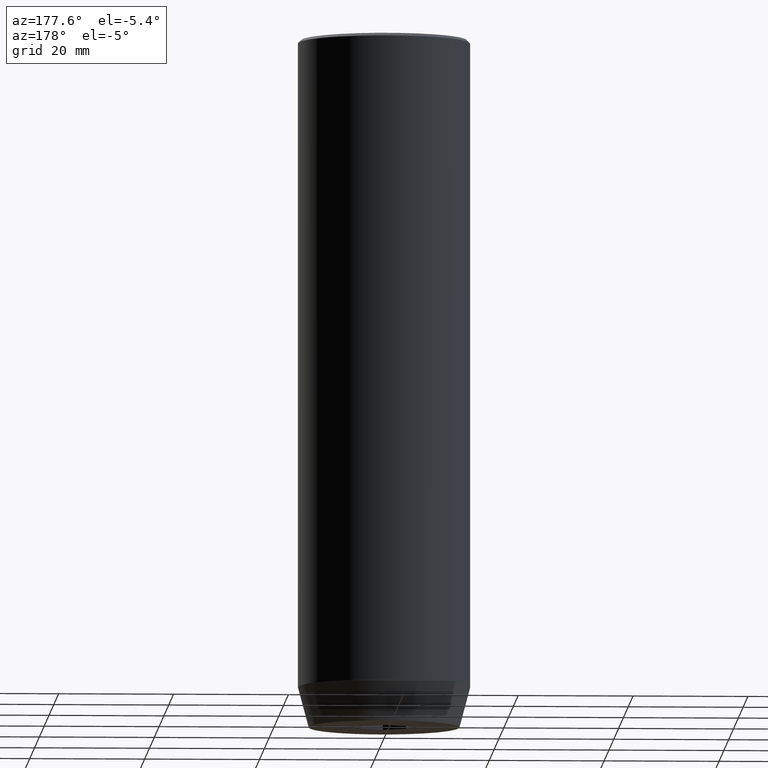
[diagram: clean part render]
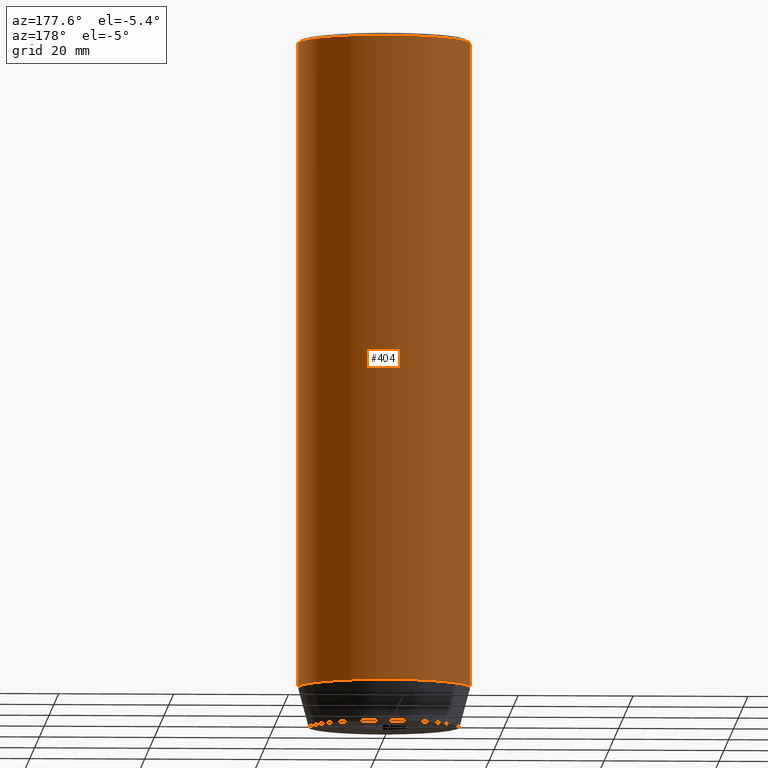
[diagram: same view with one face highlighted and labeled with its STEP entity id]
A machine part, auxiliary view. The second image highlights one B-rep face of the part: STEP entity #404.
In plain terms, the highlighted cylindrical surface (partial cylindrical patch) has radius 15 mm, axis along (-0, -0, 1).
Its self-contained STEP definition (entity closure, byte-faithful):
#16 = EDGE_CURVE ( 'NONE', #70, #596, #638, .T. ) ;
#39 = CARTESIAN_POINT ( 'NONE',  ( -15.00000000000000000, 1.836970198721029589E-15, -112.9999999999999858 ) ) ;
#44 = AXIS2_PLACEMENT_3D ( 'NONE', #619, #463, #479 ) ;
#62 = DIRECTION ( 'NONE',  ( -0.000000000000000000, -0.000000000000000000, 1.000000000000000000 ) ) ;
#70 = VERTEX_POINT ( 'NONE', #230 ) ;
#77 = AXIS2_PLACEMENT_3D ( 'NONE', #121, #516, #229 ) ;
#89 = DIRECTION ( 'NONE',  ( -0.000000000000000000, -0.000000000000000000, 1.000000000000000000 ) ) ;
#94 = LINE ( 'NONE', #574, #143 ) ;
#121 = CARTESIAN_POINT ( 'NONE',  ( 0.000000000000000000, 0.000000000000000000, -112.9999999999999858 ) ) ;
#132 = EDGE_CURVE ( 'NONE', #160, #70, #94, .T. ) ;
#143 = VECTOR ( 'NONE', #89, 1000.000000000000000 ) ;
#157 = CYLINDRICAL_SURFACE ( 'NONE', #295, 15.00000000000000000 ) ;
#160 = VERTEX_POINT ( 'NONE', #39 ) ;
#211 = VECTOR ( 'NONE', #309, 1000.000000000000000 ) ;
#214 = ORIENTED_EDGE ( 'NONE', *, *, #132, .T. ) ;
#229 = DIRECTION ( 'NONE',  ( 1.000000000000000000, 0.000000000000000000, 0.000000000000000000 ) ) ;
#230 = CARTESIAN_POINT ( 'NONE',  ( -15.00000000000000000, 1.836970198721029589E-15, -0.4999999999999970024 ) ) ;
#259 = EDGE_CURVE ( 'NONE', #262, #596, #496, .T. ) ;
#262 = VERTEX_POINT ( 'NONE', #602 ) ;
#267 = EDGE_LOOP ( 'NONE', ( #292, #214, #624, #521 ) ) ;
#292 = ORIENTED_EDGE ( 'NONE', *, *, #556, .T. ) ;
#295 = AXIS2_PLACEMENT_3D ( 'NONE', #501, #62, #356 ) ;
#309 = DIRECTION ( 'NONE',  ( -0.000000000000000000, -0.000000000000000000, 1.000000000000000000 ) ) ;
#356 = DIRECTION ( 'NONE',  ( 1.000000000000000000, 0.000000000000000000, 0.000000000000000000 ) ) ;
#404 = ADVANCED_FACE ( 'NONE', ( #598 ), #157, .T. ) ;
#463 = DIRECTION ( 'NONE',  ( 0.000000000000000000, 0.000000000000000000, -1.000000000000000000 ) ) ;
#479 = DIRECTION ( 'NONE',  ( 1.000000000000000000, 0.000000000000000000, 0.000000000000000000 ) ) ;
#496 = LINE ( 'NONE', #595, #211 ) ;
#501 = CARTESIAN_POINT ( 'NONE',  ( 0.000000000000000000, 0.000000000000000000, 0.000000000000000000 ) ) ;
#516 = DIRECTION ( 'NONE',  ( -0.000000000000000000, -0.000000000000000000, 1.000000000000000000 ) ) ;
#521 = ORIENTED_EDGE ( 'NONE', *, *, #259, .F. ) ;
#542 = CARTESIAN_POINT ( 'NONE',  ( 15.00000000000000000, 0.000000000000000000, -0.4999999999999970024 ) ) ;
#556 = EDGE_CURVE ( 'NONE', #262, #160, #590, .T. ) ;
#574 = CARTESIAN_POINT ( 'NONE',  ( -15.00000000000000000, 1.836970198721029589E-15, 0.000000000000000000 ) ) ;
#590 = CIRCLE ( 'NONE', #77, 15.00000000000000000 ) ;
#595 = CARTESIAN_POINT ( 'NONE',  ( 15.00000000000000000, 0.000000000000000000, 0.000000000000000000 ) ) ;
#596 = VERTEX_POINT ( 'NONE', #542 ) ;
#598 = FACE_OUTER_BOUND ( 'NONE', #267, .T. ) ;
#602 = CARTESIAN_POINT ( 'NONE',  ( 15.00000000000000000, 0.000000000000000000, -112.9999999999999858 ) ) ;
#619 = CARTESIAN_POINT ( 'NONE',  ( 0.000000000000000000, 0.000000000000000000, -0.4999999999999970024 ) ) ;
#624 = ORIENTED_EDGE ( 'NONE', *, *, #16, .T. ) ;
#638 = CIRCLE ( 'NONE', #44, 15.00000000000000000 ) ;